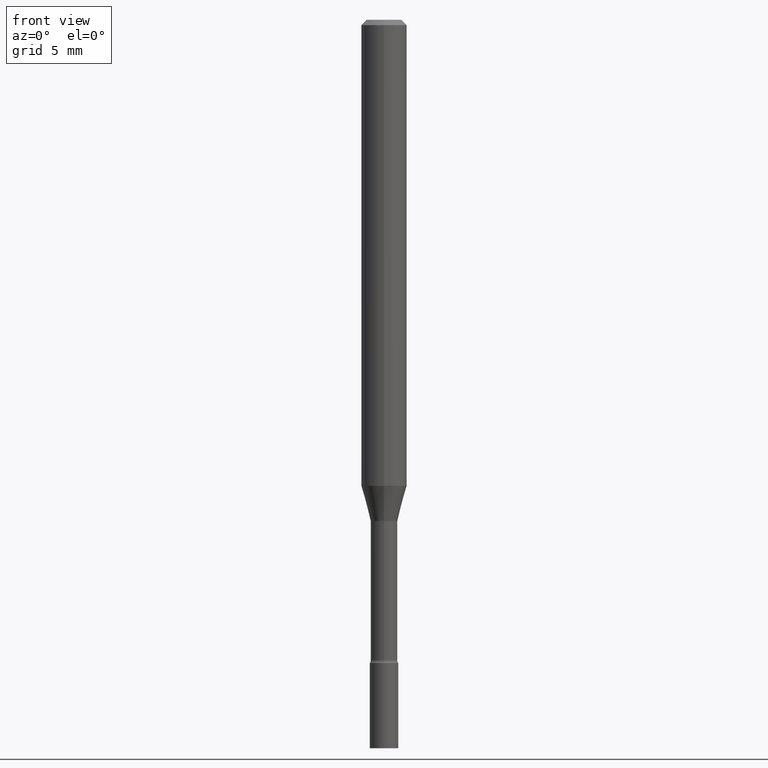
[diagram: clean part render]
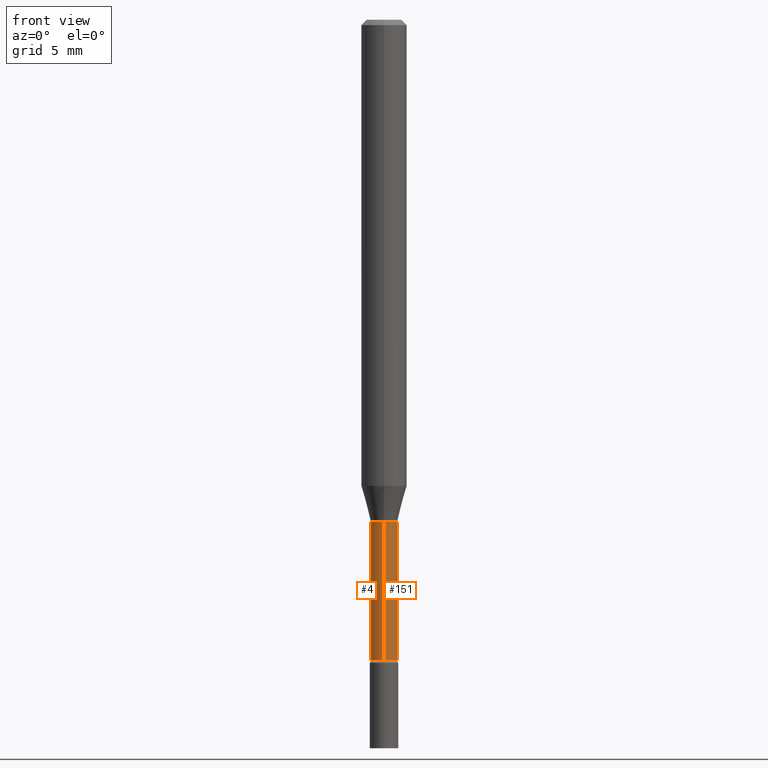
[diagram: same view with one multi-face feature highlighted, each face labeled with its STEP entity id]
A machine part, front view. The highlighted faces form ONE feature: a constant-radius fillet chain: 2 tangent blend faces with common blend radius 0.9309 mm. The faces share edges in the B-rep.
Their STEP definitions:
[1] entity #151 (Cylinder):
#6 = EDGE_LOOP ( 'NONE', ( #61, #442, #425, #50 ) ) ;
#11 = DIRECTION ( 'NONE',  ( -2.445444323621651242E-29, 3.491516399267517644E-15, 1.000000000000000000 ) ) ;
#22 = DIRECTION ( 'NONE',  ( -6.982962677686265133E-15, -1.000000000000000000, 3.491516399267517250E-15 ) ) ;
#29 = AXIS2_PLACEMENT_3D ( 'NONE', #290, #446, #386 ) ;
#50 = ORIENTED_EDGE ( 'NONE', *, *, #482, .F. ) ;
#60 = DIRECTION ( 'NONE',  ( -2.445444323621651242E-29, 3.491516399267517644E-15, 1.000000000000000000 ) ) ;
#61 = ORIENTED_EDGE ( 'NONE', *, *, #260, .T. ) ;
#67 = CIRCLE ( 'NONE', #29, 0.03665000000000003672 ) ;
#106 = AXIS2_PLACEMENT_3D ( 'NONE', #217, #11, #22 ) ;
#141 = FACE_OUTER_BOUND ( 'NONE', #6, .T. ) ;
#150 = AXIS2_PLACEMENT_3D ( 'NONE', #345, #455, #161 ) ;
#151 = ADVANCED_FACE ( 'NONE', ( #141 ), #422, .T. ) ;
#161 = DIRECTION ( 'NONE',  ( -6.982962677686265133E-15, -1.000000000000000000, 0.000000000000000000 ) ) ;
#165 = VERTEX_POINT ( 'NONE', #219 ) ;
#172 = LINE ( 'NONE', #278, #452 ) ;
#193 = DIRECTION ( 'NONE',  ( -2.445444323621651242E-29, 3.491516399267517644E-15, 1.000000000000000000 ) ) ;
#194 = VERTEX_POINT ( 'NONE', #238 ) ;
#195 = VERTEX_POINT ( 'NONE', #196 ) ;
#196 = CARTESIAN_POINT ( 'NONE',  ( 2.687627898013010678E-16, 0.03664999999999390273, -1.757939137763241400 ) ) ;
#217 = CARTESIAN_POINT ( 'NONE',  ( 0.000000000000000000, 0.000000000000000000, 0.000000000000000000 ) ) ;
#219 = CARTESIAN_POINT ( 'NONE',  ( -2.559255821371679685E-16, -0.03665000000000481761, -1.377974787463811079 ) ) ;
#238 = CARTESIAN_POINT ( 'NONE',  ( 2.604139126561198240E-16, 0.03664999999999519337, -1.377974787463811079 ) ) ;
#260 = EDGE_CURVE ( 'NONE', #484, #195, #67, .T. ) ;
#267 = EDGE_CURVE ( 'NONE', #195, #194, #499, .T. ) ;
#278 = CARTESIAN_POINT ( 'NONE',  ( -2.559255821372017909E-16, -0.03665000000000002284, 1.279640760331545798E-16 ) ) ;
#290 = CARTESIAN_POINT ( 'NONE',  ( 4.298942285715458572E-29, -6.137873328414557484E-15, -1.757939137763241400 ) ) ;
#293 = CIRCLE ( 'NONE', #150, 0.03665000000000000202 ) ;
#297 = CARTESIAN_POINT ( 'NONE',  ( 2.604139126560768311E-16, 0.03665000000000002284, -1.279640760331545798E-16 ) ) ;
#345 = CARTESIAN_POINT ( 'NONE',  ( 3.369760622097127758E-29, -4.811221568207068873E-15, -1.377974787463811079 ) ) ;
#365 = VECTOR ( 'NONE', #60, 39.37007874015748143 ) ;
#386 = DIRECTION ( 'NONE',  ( -6.982962677686265922E-15, -1.000000000000000000, 0.000000000000000000 ) ) ;
#422 = CYLINDRICAL_SURFACE ( 'NONE', #106, 0.03665000000000002284 ) ;
#425 = ORIENTED_EDGE ( 'NONE', *, *, #468, .F. ) ;
#442 = ORIENTED_EDGE ( 'NONE', *, *, #267, .T. ) ;
#446 = DIRECTION ( 'NONE',  ( -2.445444323621651242E-29, 3.491516399267517644E-15, 1.000000000000000000 ) ) ;
#452 = VECTOR ( 'NONE', #193, 39.37007874015748143 ) ;
#455 = DIRECTION ( 'NONE',  ( -2.445444323621651242E-29, 3.491516399267517644E-15, 1.000000000000000000 ) ) ;
#467 = CARTESIAN_POINT ( 'NONE',  ( -2.559255821371589459E-16, -0.03665000000000617764, -1.757939137763241400 ) ) ;
#468 = EDGE_CURVE ( 'NONE', #165, #194, #293, .T. ) ;
#482 = EDGE_CURVE ( 'NONE', #484, #165, #172, .T. ) ;
#484 = VERTEX_POINT ( 'NONE', #467 ) ;
#499 = LINE ( 'NONE', #297, #365 ) ;
[2] entity #4 (Cylinder):
#4 = ADVANCED_FACE ( 'NONE', ( #241 ), #368, .T. ) ;
#49 = DIRECTION ( 'NONE',  ( -2.445444323621651242E-29, 3.491516399267517644E-15, 1.000000000000000000 ) ) ;
#60 = DIRECTION ( 'NONE',  ( -2.445444323621651242E-29, 3.491516399267517644E-15, 1.000000000000000000 ) ) ;
#92 = EDGE_LOOP ( 'NONE', ( #364, #118, #239, #409 ) ) ;
#98 = CIRCLE ( 'NONE', #164, 0.03665000000000000202 ) ;
#118 = ORIENTED_EDGE ( 'NONE', *, *, #202, .T. ) ;
#127 = CARTESIAN_POINT ( 'NONE',  ( 0.000000000000000000, 0.000000000000000000, 0.000000000000000000 ) ) ;
#164 = AXIS2_PLACEMENT_3D ( 'NONE', #246, #49, #454 ) ;
#165 = VERTEX_POINT ( 'NONE', #219 ) ;
#172 = LINE ( 'NONE', #278, #452 ) ;
#193 = DIRECTION ( 'NONE',  ( -2.445444323621651242E-29, 3.491516399267517644E-15, 1.000000000000000000 ) ) ;
#194 = VERTEX_POINT ( 'NONE', #238 ) ;
#195 = VERTEX_POINT ( 'NONE', #196 ) ;
#196 = CARTESIAN_POINT ( 'NONE',  ( 2.687627898013010678E-16, 0.03664999999999390273, -1.757939137763241400 ) ) ;
#201 = DIRECTION ( 'NONE',  ( -2.445444323621651242E-29, 3.491516399267517644E-15, 1.000000000000000000 ) ) ;
#202 = EDGE_CURVE ( 'NONE', #195, #484, #399, .T. ) ;
#204 = DIRECTION ( 'NONE',  ( -2.445444323621651242E-29, 3.491516399267517644E-15, 1.000000000000000000 ) ) ;
#219 = CARTESIAN_POINT ( 'NONE',  ( -2.559255821371679685E-16, -0.03665000000000481761, -1.377974787463811079 ) ) ;
#228 = EDGE_CURVE ( 'NONE', #194, #165, #98, .T. ) ;
#238 = CARTESIAN_POINT ( 'NONE',  ( 2.604139126561198240E-16, 0.03664999999999519337, -1.377974787463811079 ) ) ;
#239 = ORIENTED_EDGE ( 'NONE', *, *, #482, .T. ) ;
#241 = FACE_OUTER_BOUND ( 'NONE', #92, .T. ) ;
#246 = CARTESIAN_POINT ( 'NONE',  ( 3.369760622097127758E-29, -4.811221568207068873E-15, -1.377974787463811079 ) ) ;
#253 = DIRECTION ( 'NONE',  ( -6.982962677686265133E-15, -1.000000000000000000, 3.491516399267517250E-15 ) ) ;
#267 = EDGE_CURVE ( 'NONE', #195, #194, #499, .T. ) ;
#278 = CARTESIAN_POINT ( 'NONE',  ( -2.559255821372017909E-16, -0.03665000000000002284, 1.279640760331545798E-16 ) ) ;
#297 = CARTESIAN_POINT ( 'NONE',  ( 2.604139126560768311E-16, 0.03665000000000002284, -1.279640760331545798E-16 ) ) ;
#326 = DIRECTION ( 'NONE',  ( -6.982962677686265922E-15, -1.000000000000000000, 0.000000000000000000 ) ) ;
#350 = AXIS2_PLACEMENT_3D ( 'NONE', #366, #201, #326 ) ;
#364 = ORIENTED_EDGE ( 'NONE', *, *, #267, .F. ) ;
#365 = VECTOR ( 'NONE', #60, 39.37007874015748143 ) ;
#366 = CARTESIAN_POINT ( 'NONE',  ( 4.298942285715458572E-29, -6.137873328414557484E-15, -1.757939137763241400 ) ) ;
#368 = CYLINDRICAL_SURFACE ( 'NONE', #494, 0.03665000000000002284 ) ;
#399 = CIRCLE ( 'NONE', #350, 0.03665000000000003672 ) ;
#409 = ORIENTED_EDGE ( 'NONE', *, *, #228, .F. ) ;
#452 = VECTOR ( 'NONE', #193, 39.37007874015748143 ) ;
#454 = DIRECTION ( 'NONE',  ( -6.982962677686265133E-15, -1.000000000000000000, 0.000000000000000000 ) ) ;
#467 = CARTESIAN_POINT ( 'NONE',  ( -2.559255821371589459E-16, -0.03665000000000617764, -1.757939137763241400 ) ) ;
#482 = EDGE_CURVE ( 'NONE', #484, #165, #172, .T. ) ;
#484 = VERTEX_POINT ( 'NONE', #467 ) ;
#494 = AXIS2_PLACEMENT_3D ( 'NONE', #127, #204, #253 ) ;
#499 = LINE ( 'NONE', #297, #365 ) ;